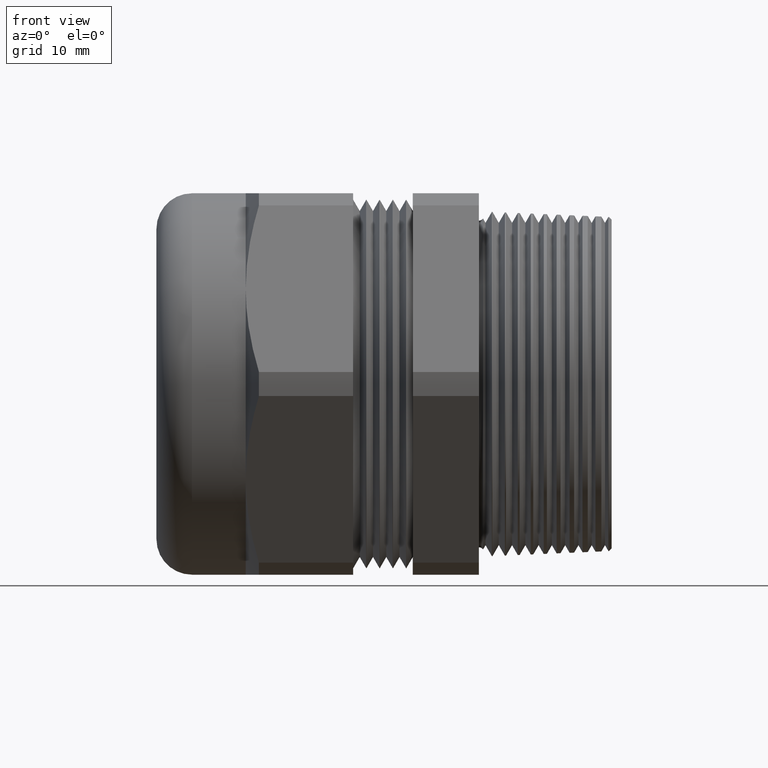
[diagram: clean part render]
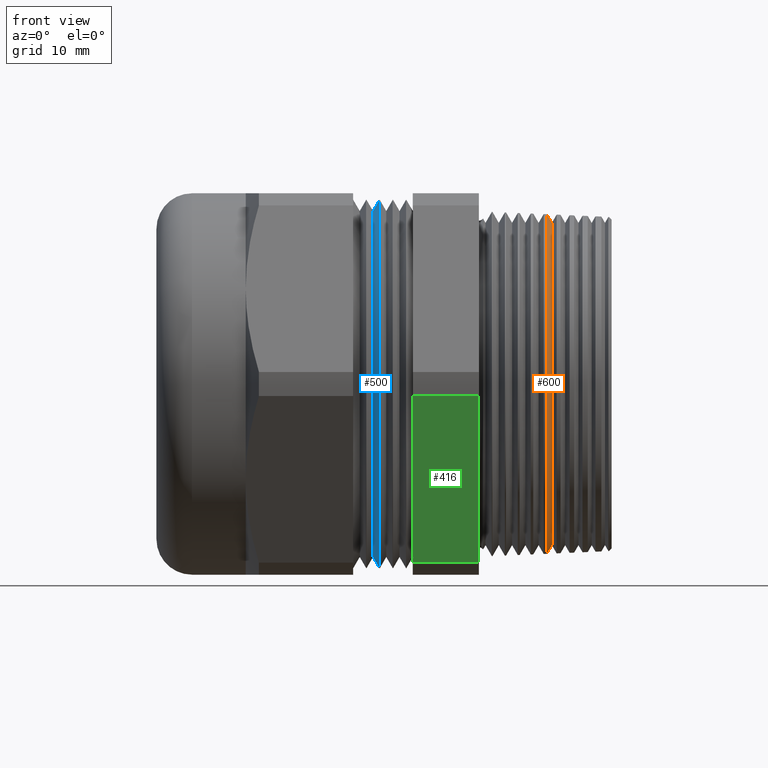
[diagram: same view with three faces highlighted in distinct colors, each labeled with its STEP entity id]
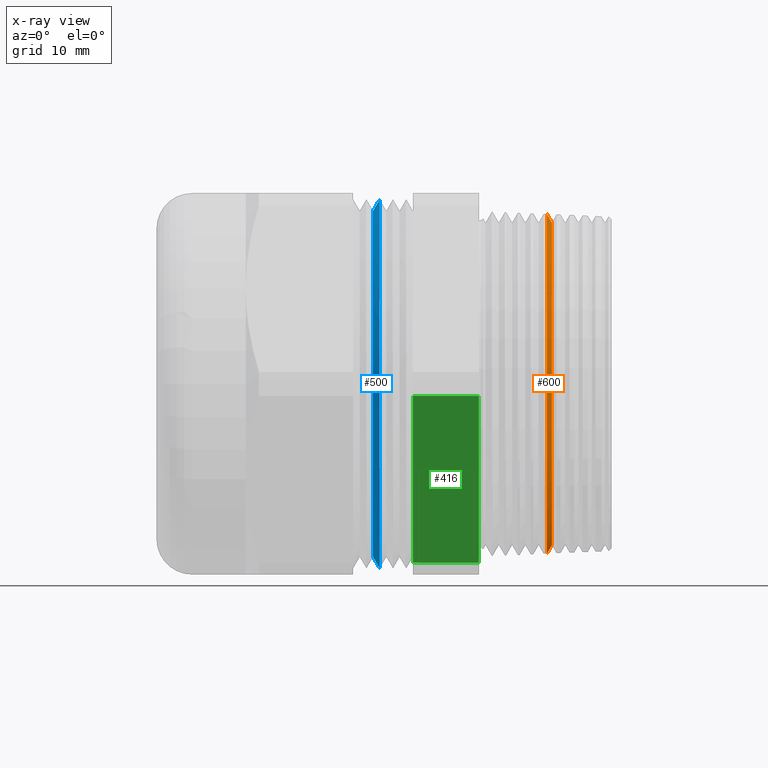
[diagram: x-ray of the same camera — body ghosted, the three highlighted faces saturated]
A machine part, front view with three faces highlighted in distinct colors.
The next image is the same camera in x-ray (body ghosted, the three faces saturated) — at least one of them is partly hidden behind the body in this view.
Their STEP definitions:

[orange] entity #600 — the highlighted conical surface has half-angle 60 deg.
#257 = EDGE_CURVE ( 'NONE', #1008, #1005, #1827, .T. ) ;
#600 = ADVANCED_FACE ( 'NONE', ( #2386 ), #2385, .T. ) ;
#601 = EDGE_LOOP ( 'NONE', ( #602, #603, #605, #606 ) ) ;
#602 = ORIENTED_EDGE ( 'NONE', *, *, #1004, .F. ) ;
#603 = ORIENTED_EDGE ( 'NONE', *, *, #604, .T. ) ;
#604 = EDGE_CURVE ( 'NONE', #1071, #1077, #2384, .T. ) ;
#605 = ORIENTED_EDGE ( 'NONE', *, *, #1010, .T. ) ;
#606 = ORIENTED_EDGE ( 'NONE', *, *, #257, .T. ) ;
#1004 = EDGE_CURVE ( 'NONE', #1071, #1005, #3131, .T. ) ;
#1005 = VERTEX_POINT ( 'NONE', #3122 ) ;
#1008 = VERTEX_POINT ( 'NONE', #3116 ) ;
#1010 = EDGE_CURVE ( 'NONE', #1077, #1008, #3115, .T. ) ;
#1071 = VERTEX_POINT ( 'NONE', #3196 ) ;
#1077 = VERTEX_POINT ( 'NONE', #3245 ) ;
#1824 = DIRECTION ( 'NONE',  ( 0.0000000000000000000, 0.0000000000000000000, 1.000000000000000000 ) ) ;
#1825 = DIRECTION ( 'NONE',  ( 1.000000000000000000, 0.0000000000000000000, 0.0000000000000000000 ) ) ;
#1826 = AXIS2_PLACEMENT_3D ( 'NONE', #1832, #1825, #1824 ) ;
#1827 = CIRCLE ( 'NONE', #1826, 0.8058911519802788300 ) ;
#1832 = CARTESIAN_POINT ( 'NONE',  ( 0.3231457472021415100, 0.0000000000000000000, 0.0000000000000000000 ) ) ;
#2376 = DIRECTION ( 'NONE',  ( 0.0000000000000000000, 0.0000000000000000000, 1.000000000000000000 ) ) ;
#2377 = DIRECTION ( 'NONE',  ( -1.000000000000000000, 0.0000000000000000000, 0.0000000000000000000 ) ) ;
#2378 = CARTESIAN_POINT ( 'NONE',  ( 0.3468319270764288500, 0.0000000000000000000, 0.0000000000000000000 ) ) ;
#2379 = AXIS2_PLACEMENT_3D ( 'NONE', #2378, #2377, #2376 ) ;
#2380 = DIRECTION ( 'NONE',  ( 0.0000000000000000000, 0.0000000000000000000, 1.000000000000000000 ) ) ;
#2381 = DIRECTION ( 'NONE',  ( -1.000000000000000000, 0.0000000000000000000, 0.0000000000000000000 ) ) ;
#2382 = CARTESIAN_POINT ( 'NONE',  ( 0.3150000000000000000, 0.0000000000000000000, 0.0000000000000000000 ) ) ;
#2383 = AXIS2_PLACEMENT_3D ( 'NONE', #2382, #2381, #2380 ) ;
#2384 = CIRCLE ( 'NONE', #2379, 0.7648654850007971000 ) ;
#2385 = CONICAL_SURFACE ( 'NONE', #2383, 0.8199999999999999500, 1.047197551196602700 ) ;
#2386 = FACE_OUTER_BOUND ( 'NONE', #601, .T. ) ;
#3112 = DIRECTION ( 'NONE',  ( -0.4999999999999956700, 0.0000000000000000000, 0.8660254037844411500 ) ) ;
#3113 = VECTOR ( 'NONE', #3112, 39.37007874015748100 ) ;
#3114 = CARTESIAN_POINT ( 'NONE',  ( 0.3150000000000000000, 0.0000000000000000000, 0.8199999999999999500 ) ) ;
#3115 = LINE ( 'NONE', #3114, #3113 ) ;
#3116 = CARTESIAN_POINT ( 'NONE',  ( 0.3231457472021415100, 0.0000000000000000000, 0.8058911519802788300 ) ) ;
#3122 = CARTESIAN_POINT ( 'NONE',  ( 0.3231457472021415100, 9.873395459297823700E-017, -0.8058911519802788300 ) ) ;
#3123 = DIRECTION ( 'NONE',  ( -0.4999999999999956700, 1.060575238724910100E-016, -0.8660254037844411500 ) ) ;
#3124 = VECTOR ( 'NONE', #3123, 39.37007874015748100 ) ;
#3125 = CARTESIAN_POINT ( 'NONE',  ( 0.3150000000000000000, 1.004210375300829600E-016, -0.8199999999999999500 ) ) ;
#3131 = LINE ( 'NONE', #3125, #3124 ) ;
#3196 = CARTESIAN_POINT ( 'NONE',  ( 0.3468319270764288500, 9.618110438591677800E-017, -0.7648654850007971000 ) ) ;
#3245 = CARTESIAN_POINT ( 'NONE',  ( 0.3468319270764288500, 0.0000000000000000000, 0.7648654850007971000 ) ) ;

[blue] entity #500 — the highlighted conical surface has half-angle 60 deg.
#350 = EDGE_CURVE ( 'NONE', #1200, #1252, #2022, .T. ) ;
#480 = ORIENTED_EDGE ( 'NONE', *, *, #481, .T. ) ;
#481 = EDGE_CURVE ( 'NONE', #1197, #1295, #2206, .T. ) ;
#482 = ORIENTED_EDGE ( 'NONE', *, *, #1231, .T. ) ;
#483 = ORIENTED_EDGE ( 'NONE', *, *, #350, .F. ) ;
#500 = ADVANCED_FACE ( 'NONE', ( #2250 ), #2249, .T. ) ;
#501 = EDGE_LOOP ( 'NONE', ( #502, #480, #482, #483 ) ) ;
#502 = ORIENTED_EDGE ( 'NONE', *, *, #1199, .F. ) ;
#1197 = VERTEX_POINT ( 'NONE', #3464 ) ;
#1199 = EDGE_CURVE ( 'NONE', #1197, #1200, #3463, .T. ) ;
#1200 = VERTEX_POINT ( 'NONE', #3459 ) ;
#1231 = EDGE_CURVE ( 'NONE', #1295, #1252, #3527, .T. ) ;
#1252 = VERTEX_POINT ( 'NONE', #3540 ) ;
#1295 = VERTEX_POINT ( 'NONE', #3634 ) ;
#2018 = DIRECTION ( 'NONE',  ( 0.0000000000000000000, 0.0000000000000000000, -1.000000000000000000 ) ) ;
#2019 = DIRECTION ( 'NONE',  ( 1.000000000000000000, 0.0000000000000000000, 0.0000000000000000000 ) ) ;
#2020 = CARTESIAN_POINT ( 'NONE',  ( -0.4712500289075070600, 0.0000000000000000000, 0.0000000000000000000 ) ) ;
#2021 = AXIS2_PLACEMENT_3D ( 'NONE', #2020, #2019, #2018 ) ;
#2022 = CIRCLE ( 'NONE', #2021, 0.8744999999999999400 ) ;
#2203 = DIRECTION ( 'NONE',  ( 0.0000000000000000000, 0.0000000000000000000, -1.000000000000000000 ) ) ;
#2204 = DIRECTION ( 'NONE',  ( 1.000000000000000000, 0.0000000000000000000, 0.0000000000000000000 ) ) ;
#2205 = AXIS2_PLACEMENT_3D ( 'NONE', #2212, #2204, #2203 ) ;
#2206 = CIRCLE ( 'NONE', #2205, 0.8208064499999998500 ) ;
#2212 = CARTESIAN_POINT ( 'NONE',  ( -0.5022500144537539500, 0.0000000000000000000, 0.0000000000000000000 ) ) ;
#2245 = DIRECTION ( 'NONE',  ( 0.0000000000000000000, 0.0000000000000000000, -1.000000000000000000 ) ) ;
#2246 = DIRECTION ( 'NONE',  ( 1.000000000000000000, 0.0000000000000000000, 0.0000000000000000000 ) ) ;
#2247 = AXIS2_PLACEMENT_3D ( 'NONE', #2254, #2246, #2245 ) ;
#2249 = CONICAL_SURFACE ( 'NONE', #2247, 0.8208064499999998500, 1.047197551196594500 ) ;
#2250 = FACE_OUTER_BOUND ( 'NONE', #501, .T. ) ;
#2254 = CARTESIAN_POINT ( 'NONE',  ( -0.5022500144537539500, 0.0000000000000000000, 0.0000000000000000000 ) ) ;
#3459 = CARTESIAN_POINT ( 'NONE',  ( -0.4712500289075070600, 0.0000000000000000000, 0.8744999999999999400 ) ) ;
#3460 = DIRECTION ( 'NONE',  ( 0.5000000000000027800, 1.060575238724904800E-016, 0.8660254037844369300 ) ) ;
#3461 = VECTOR ( 'NONE', #3460, 39.37007874015748100 ) ;
#3462 = CARTESIAN_POINT ( 'NONE',  ( -0.5022500144537539500, 1.005197991712001900E-016, 0.8208064499999998500 ) ) ;
#3463 = LINE ( 'NONE', #3462, #3461 ) ;
#3464 = CARTESIAN_POINT ( 'NONE',  ( -0.5022500144537539500, 1.038075808783181100E-016, 0.8208064499999998500 ) ) ;
#3524 = DIRECTION ( 'NONE',  ( 0.5000000000000027800, 0.0000000000000000000, -0.8660254037844369300 ) ) ;
#3525 = VECTOR ( 'NONE', #3524, 39.37007874015748100 ) ;
#3526 = CARTESIAN_POINT ( 'NONE',  ( -0.5022500144537539500, 0.0000000000000000000, -0.8208064499999998500 ) ) ;
#3527 = LINE ( 'NONE', #3526, #3525 ) ;
#3540 = CARTESIAN_POINT ( 'NONE',  ( -0.4712500289075070600, 1.070953625854360300E-016, -0.8744999999999999400 ) ) ;
#3634 = CARTESIAN_POINT ( 'NONE',  ( -0.5022500144537539500, 0.0000000000000000000, -0.8208064499999998500 ) ) ;

[green] entity #416 — the highlighted planar face has unit normal (0, -0.866, -0.5).
#97 = VERTEX_POINT ( 'NONE', #1512 ) ;
#99 = VERTEX_POINT ( 'NONE', #1511 ) ;
#100 = EDGE_CURVE ( 'NONE', #99, #97, #1510, .T. ) ;
#119 = EDGE_CURVE ( 'NONE', #99, #736, #1545, .T. ) ;
#142 = EDGE_CURVE ( 'NONE', #97, #737, #1610, .T. ) ;
#416 = ADVANCED_FACE ( 'NONE', ( #2159 ), #2164, .T. ) ;
#417 = EDGE_LOOP ( 'NONE', ( #418, #419, #420, #421 ) ) ;
#418 = ORIENTED_EDGE ( 'NONE', *, *, #100, .T. ) ;
#419 = ORIENTED_EDGE ( 'NONE', *, *, #142, .T. ) ;
#420 = ORIENTED_EDGE ( 'NONE', *, *, #735, .F. ) ;
#421 = ORIENTED_EDGE ( 'NONE', *, *, #119, .F. ) ;
#735 = EDGE_CURVE ( 'NONE', #736, #737, #2563, .T. ) ;
#736 = VERTEX_POINT ( 'NONE', #2623 ) ;
#737 = VERTEX_POINT ( 'NONE', #2622 ) ;
#1507 = DIRECTION ( 'NONE',  ( 0.0000000000000000000, 0.4999999999999998300, -0.8660254037844386000 ) ) ;
#1508 = VECTOR ( 'NONE', #1507, 39.37007874015748900 ) ;
#1509 = CARTESIAN_POINT ( 'NONE',  ( -0.3134328358208955400, -0.5651279904249173500, -0.8311696078047456900 ) ) ;
#1510 = LINE ( 'NONE', #1509, #1508 ) ;
#1511 = CARTESIAN_POINT ( 'NONE',  ( -0.3134328358208957600, -1.011985306278741600, -0.05719003301206825000 ) ) ;
#1512 = CARTESIAN_POINT ( 'NONE',  ( -0.3134328358208957600, -0.5555206745710928900, -0.8478099669879317600 ) ) ;
#1545 = LINE ( 'NONE', #1597, #1596 ) ;
#1595 = DIRECTION ( 'NONE',  ( 1.000000000000000000, 0.0000000000000000000, 0.0000000000000000000 ) ) ;
#1596 = VECTOR ( 'NONE', #1595, 39.37007874015748100 ) ;
#1597 = CARTESIAN_POINT ( 'NONE',  ( -4.001812670979164800, -1.011985306278741600, -0.05719003301206825000 ) ) ;
#1601 = DIRECTION ( 'NONE',  ( 1.000000000000000000, 0.0000000000000000000, 0.0000000000000000000 ) ) ;
#1602 = VECTOR ( 'NONE', #1601, 39.37007874015748100 ) ;
#1609 = CARTESIAN_POINT ( 'NONE',  ( -4.001812670979164800, -0.5555206745710928900, -0.8478099669879317600 ) ) ;
#1610 = LINE ( 'NONE', #1609, #1602 ) ;
#2155 = DIRECTION ( 'NONE',  ( 0.0000000000000000000, 0.4999999999999998300, -0.8660254037844386000 ) ) ;
#2156 = DIRECTION ( 'NONE',  ( 0.0000000000000000000, -0.8660254037844387100, -0.4999999999999998900 ) ) ;
#2157 = CARTESIAN_POINT ( 'NONE',  ( -4.001812670979164800, -1.011985306278741600, -0.05719003301206825000 ) ) ;
#2158 = AXIS2_PLACEMENT_3D ( 'NONE', #2157, #2156, #2155 ) ;
#2159 = FACE_OUTER_BOUND ( 'NONE', #417, .T. ) ;
#2164 = PLANE ( 'NONE',  #2158 ) ;
#2561 = VECTOR ( 'NONE', #2624, 39.37007874015748900 ) ;
#2562 = CARTESIAN_POINT ( 'NONE',  ( 0.0000000000000000000, -1.011985306278741600, -0.05719003301206825000 ) ) ;
#2563 = LINE ( 'NONE', #2562, #2561 ) ;
#2622 = CARTESIAN_POINT ( 'NONE',  ( 0.0000000000000000000, -0.5555206745710928900, -0.8478099669879317600 ) ) ;
#2623 = CARTESIAN_POINT ( 'NONE',  ( 0.0000000000000000000, -1.011985306278741800, -0.05719003301206832000 ) ) ;
#2624 = DIRECTION ( 'NONE',  ( 0.0000000000000000000, 0.4999999999999998300, -0.8660254037844386000 ) ) ;